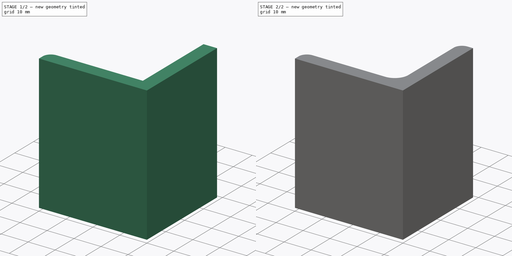
[diagram: build sequence overview — one tinted view per stage of 2, left to right]
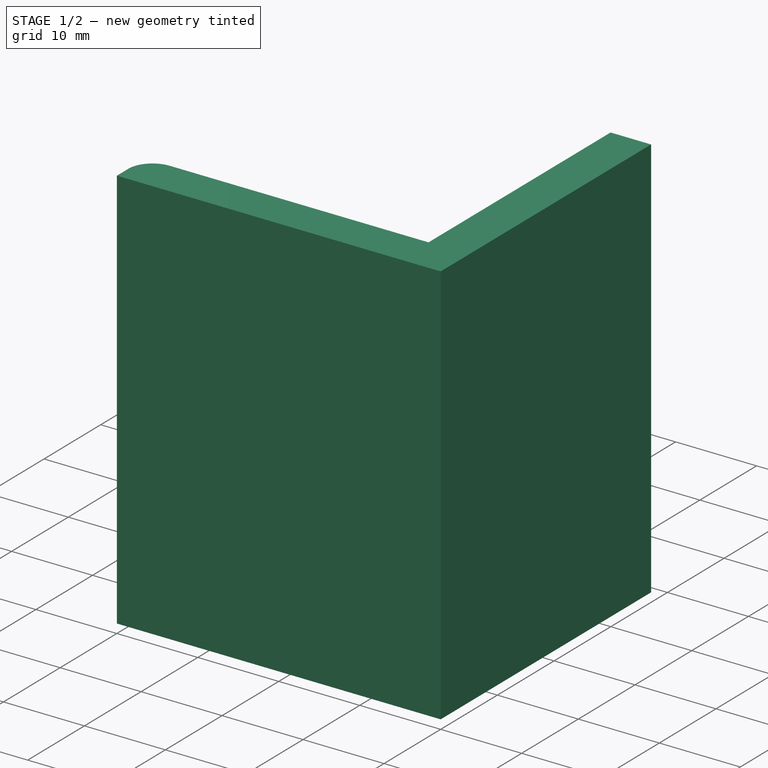
[diagram: stage 1 of 2 — iso view after this stage's code; geometry added in this stage tinted green]
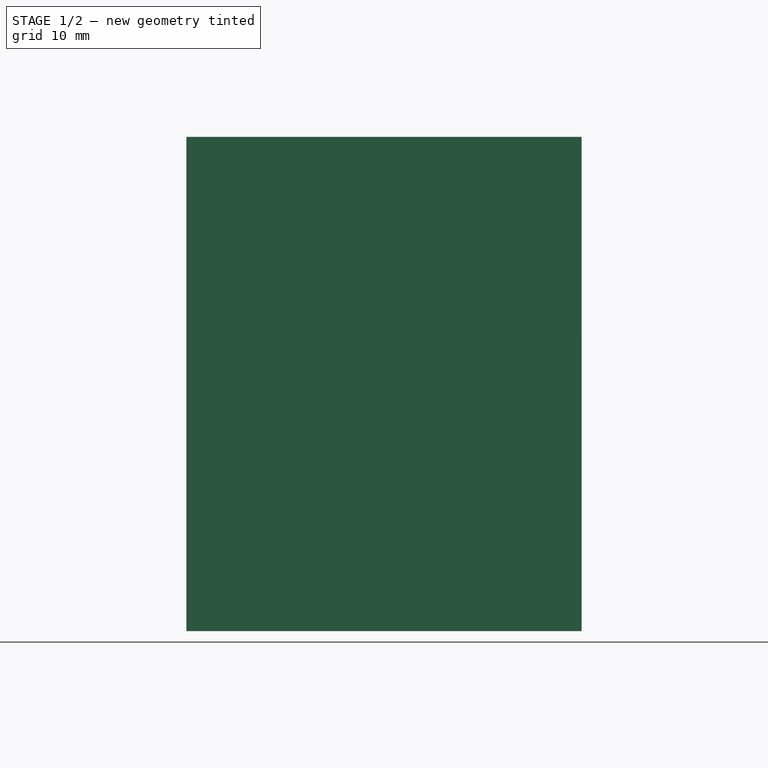
[diagram: stage 1 of 2 — front view after this stage's code; geometry added in this stage tinted green]
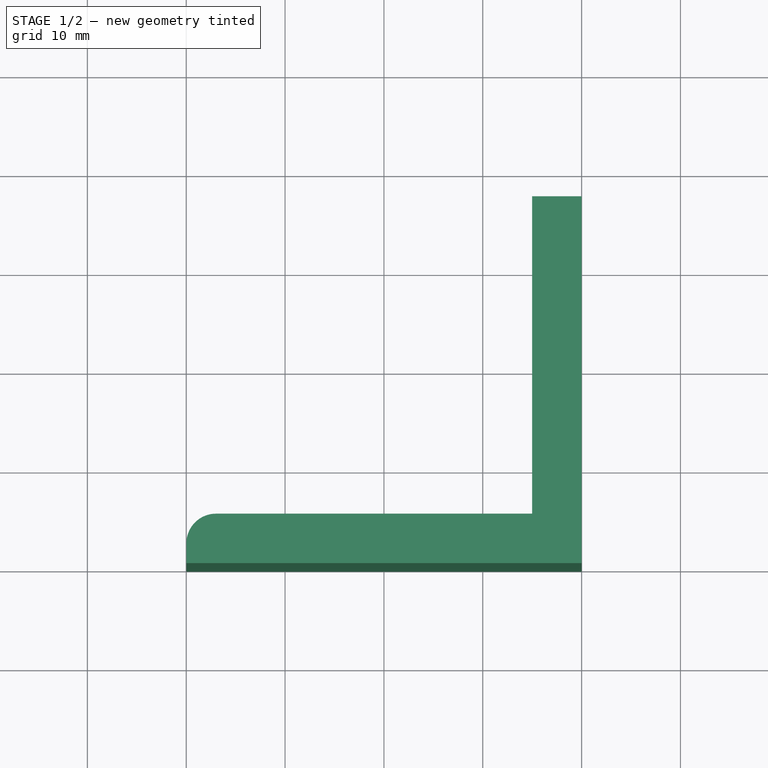
[diagram: stage 1 of 2 — top view after this stage's code; geometry added in this stage tinted green]
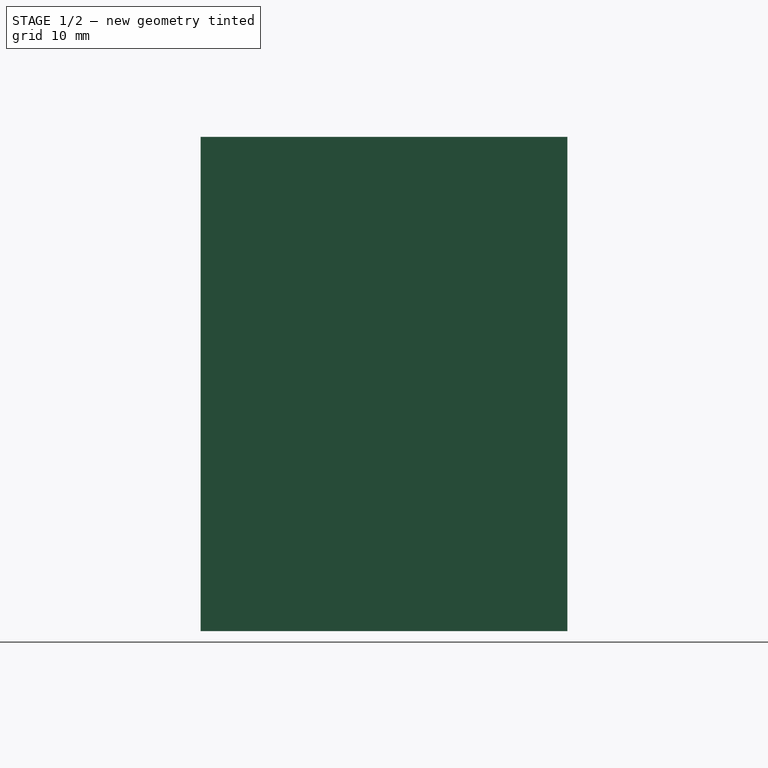
[diagram: stage 1 of 2 — right view after this stage's code; geometry added in this stage tinted green]
FCSTD DOCUMENT  (FreeCAD 0.18R4 (GitTag))
Label: ID-001-00-MRS
License: All rights reserved
LicenseURL: http://en.wikipedia.org/wiki/All_rights_reserved
objects: PartDesign::Fillet×3, Sketcher::SketchObject×1, PartDesign::Pad×1, PartDesign::Body×1
note: 7 computed .brp shape members not serialized (recipe doc carries the construction recipe); baked Part::Feature solids carry a one-line shape summary decoded from their .brp

FEATURE [Sketcher::SketchObject] Sketch
  MapMode = 5
  Support = -> [XY_Plane]
  sketch-geometry (6):
    g0: LineSegment StartX=0 StartY=37.1142 StartZ=0 EndX=0 EndY=0 EndZ=0
    g1: LineSegment StartX=0 StartY=0 StartZ=0 EndX=-39.9842 EndY=0 EndZ=0
    g2: LineSegment StartX=-39.9842 StartY=0 StartZ=0 EndX=-39.9842 EndY=5 EndZ=0
    g3: LineSegment StartX=-39.9842 StartY=5 StartZ=0 EndX=-5 EndY=5 EndZ=0
    g4: LineSegment StartX=-5 StartY=5 StartZ=0 EndX=-5 EndY=37.1142 EndZ=0
    g5: LineSegment StartX=-5 StartY=37.1142 StartZ=0 EndX=0 EndY=37.1142 EndZ=0
  constraints (15):
    c: Coincident(g0,g1)
    c: Coincident(g1,g2)
    c: Coincident(g2,g3)
    c: Coincident(g3,g4)
    c: Coincident(g4,g5)
    c: Coincident(g5,g0)
    c: Horizontal(g3)
    c: Horizontal(g1)
    c: Horizontal(g5)
    c: Vertical(g0)
    c: Vertical(g4)
    c: Vertical(g2)
    c: Coincident(g0,g-1)
    c: DistanceX(g5,g5) = 5
    c: DistanceY(g2,g2) = 5
FEATURE [PartDesign::Pad] Pad
  Length = 50
  Length2 = 100
  Midplane = true
  Profile = -> Sketch
  Type = 0
FEATURE [PartDesign::Fillet] Fillet
  Base = -> Pad [Edge8]
  BaseFeature = -> Pad
  Radius = 3
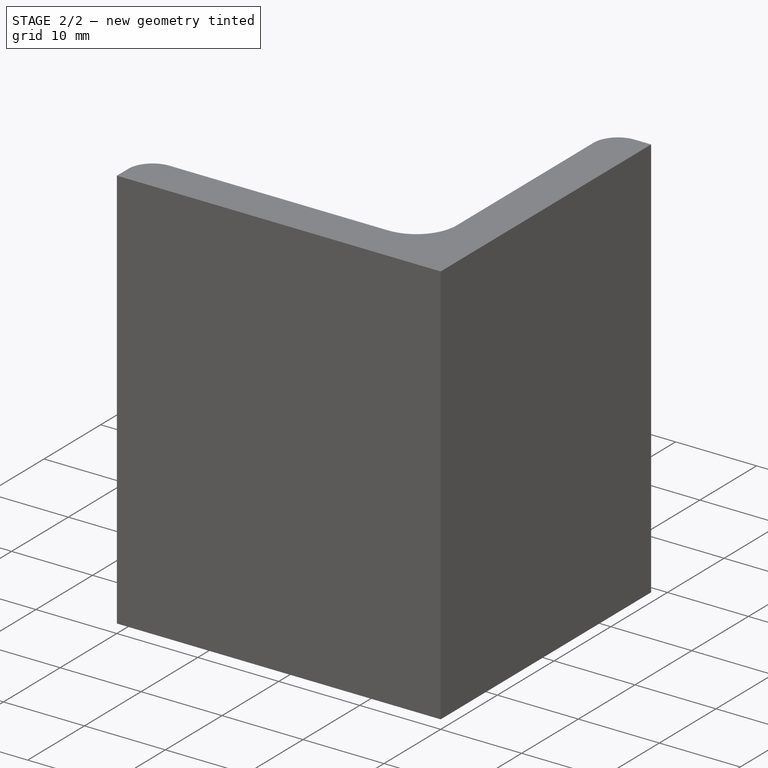
[diagram: stage 2 of 2 — iso view after this stage's code; geometry added in this stage tinted green]
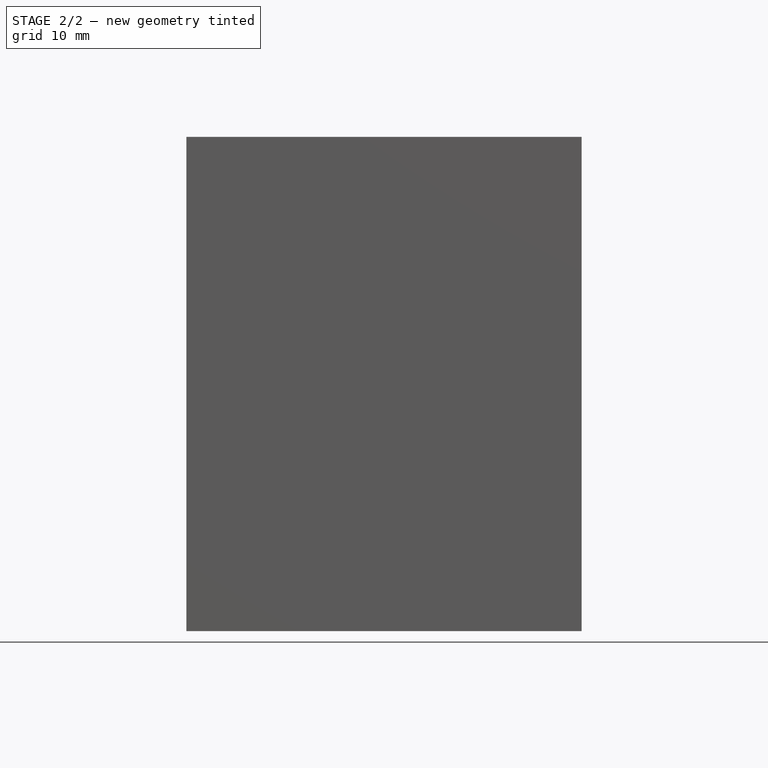
[diagram: stage 2 of 2 — front view after this stage's code; geometry added in this stage tinted green]
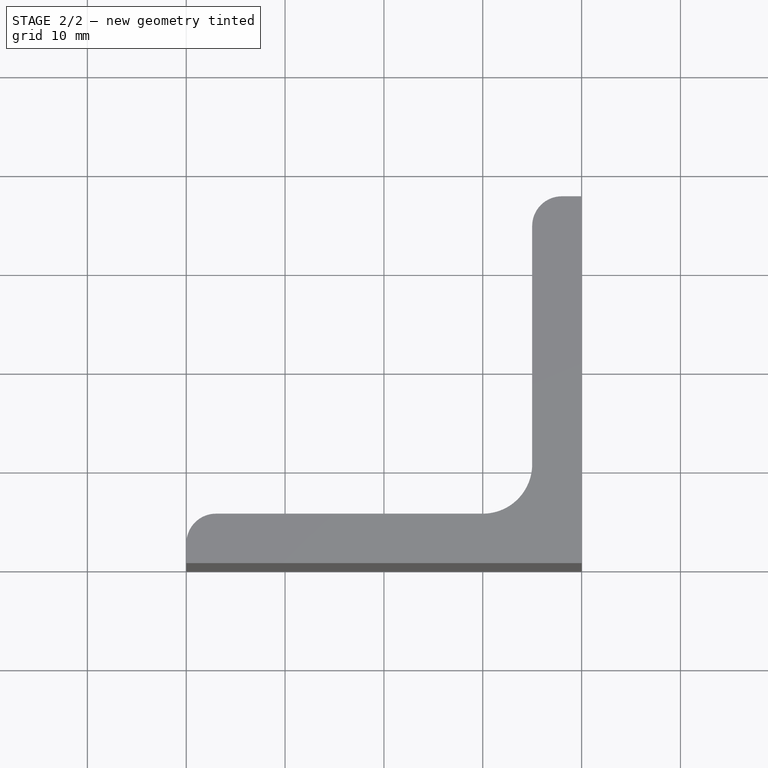
[diagram: stage 2 of 2 — top view after this stage's code; geometry added in this stage tinted green]
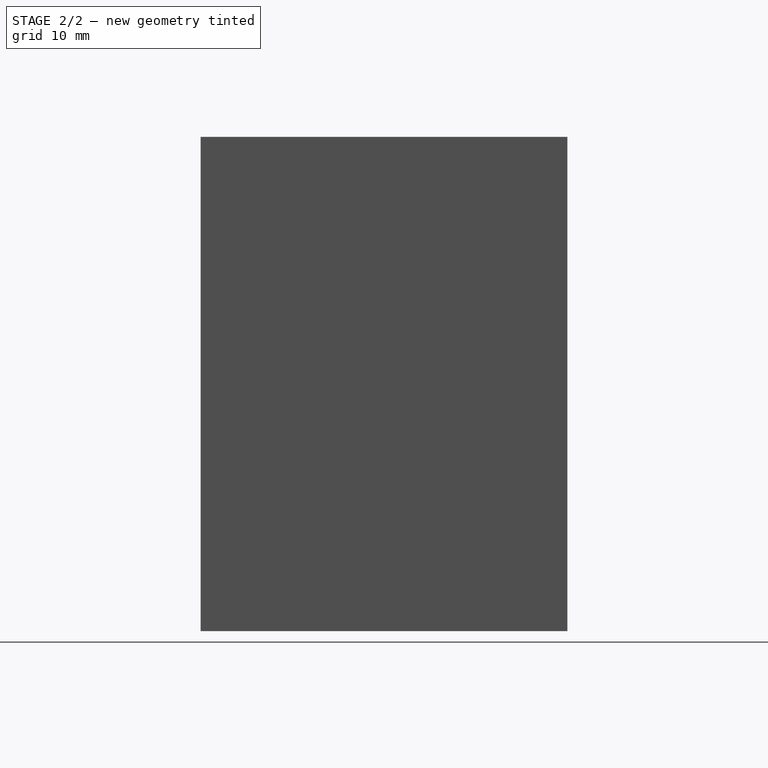
[diagram: stage 2 of 2 — right view after this stage's code; geometry added in this stage tinted green]
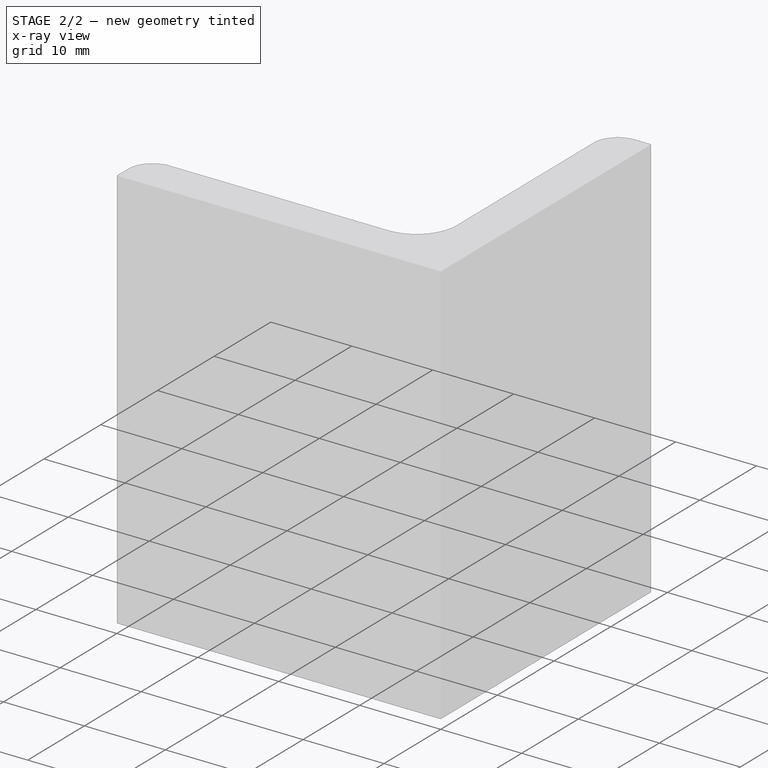
[diagram: stage 2 of 2 — x-ray composite at the iso view; earlier geometry ghosted, this stage's added geometry solid]
FEATURE [PartDesign::Fillet] Fillet001
  Base = -> Fillet [Edge21]
  BaseFeature = -> Fillet
  Radius = 3
FEATURE [PartDesign::Fillet] Fillet002
  Base = -> Fillet001 [Edge10]
  BaseFeature = -> Fillet001
  Radius = 5
FEATURE [PartDesign::Body] Body
  Group = -> [Sketch,Pad,Fillet,Fillet001,Fillet002]
  Origin = -> Origin
  Tip = -> Fillet002
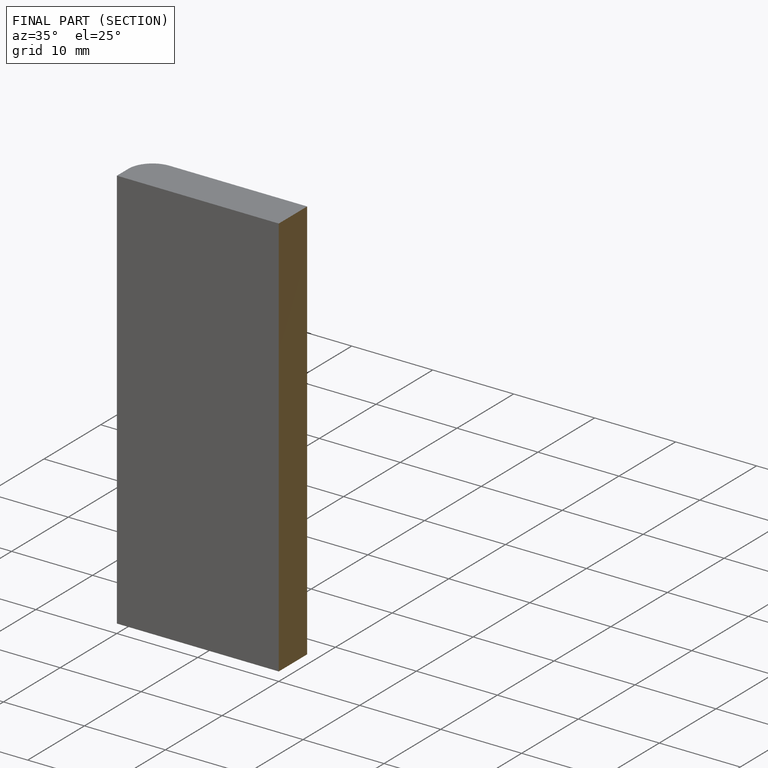
[diagram: finished part — half-section view (interior)]
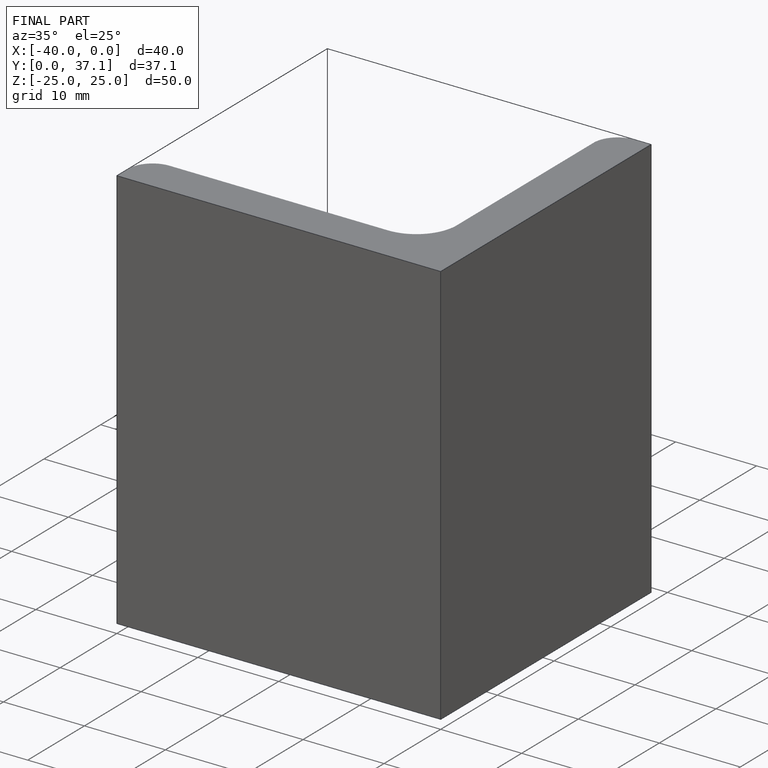
[diagram: finished part — iso view with bounding-box wireframe]
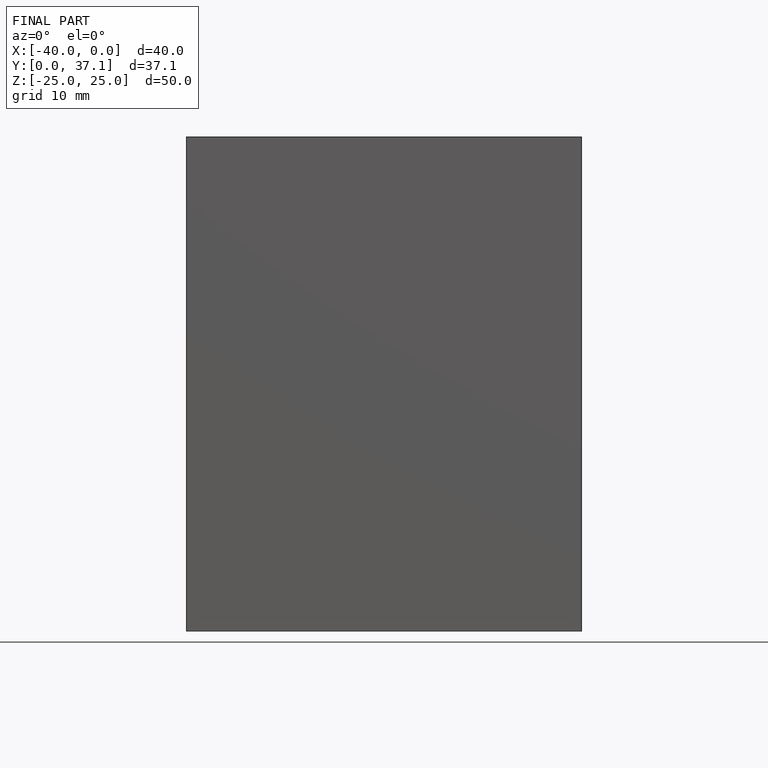
[diagram: finished part — front view with bounding-box wireframe]
